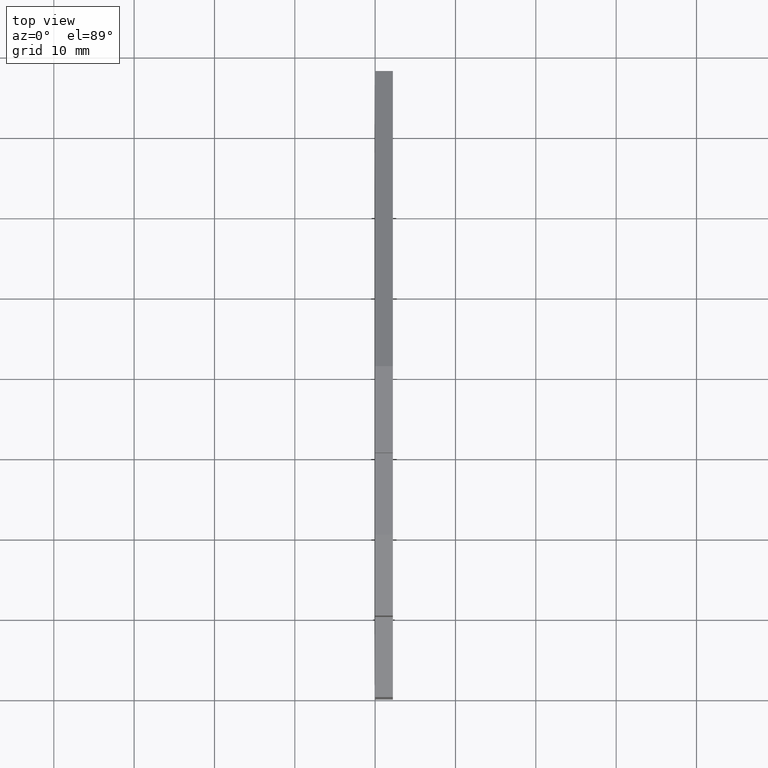
[diagram: clean part render]
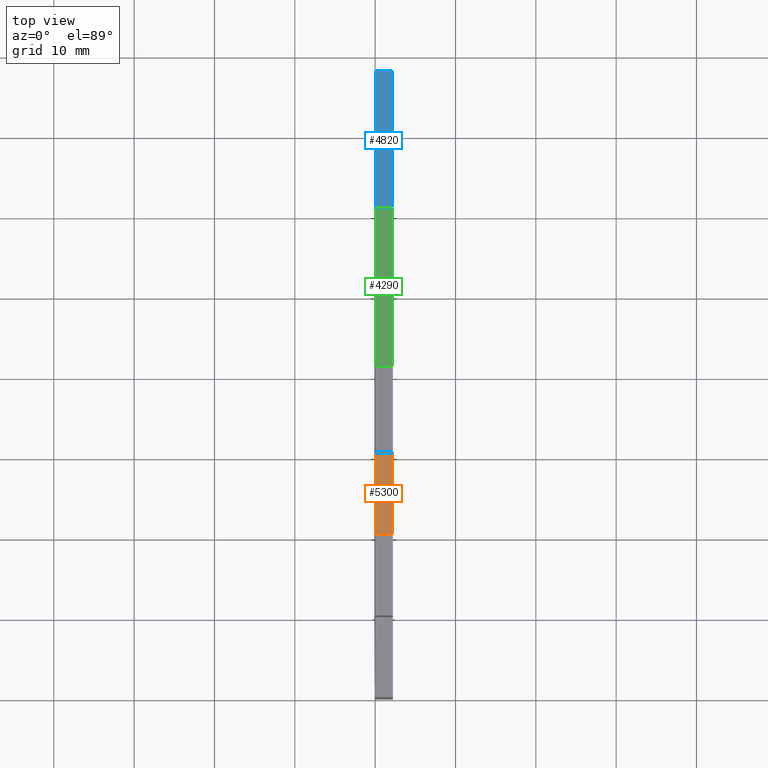
[diagram: same view with three faces highlighted in distinct colors, each labeled with its STEP entity id]
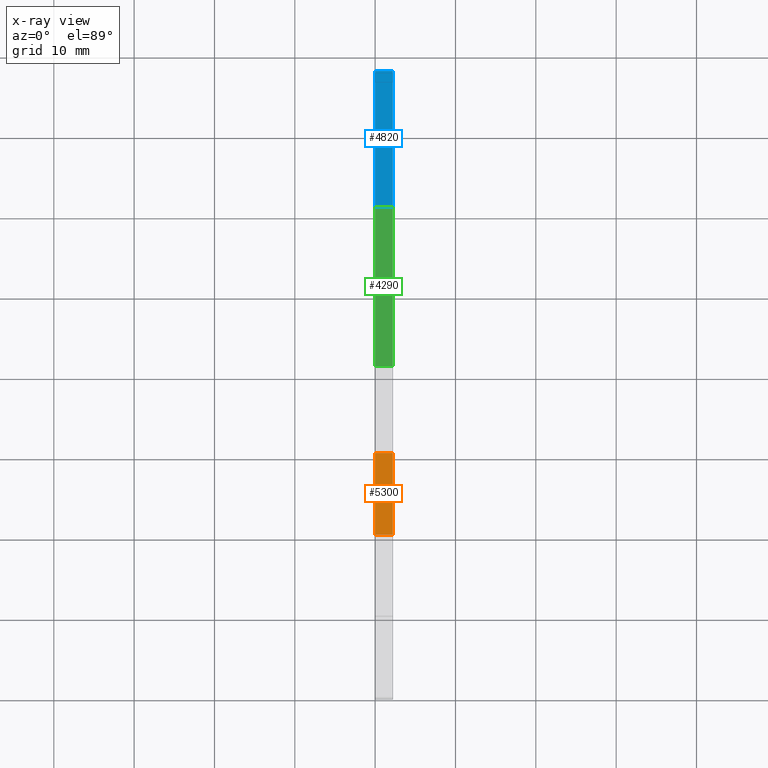
[diagram: x-ray of the same camera — body ghosted, the three highlighted faces saturated]
A machine part, top view with three faces highlighted in distinct colors.
The next image is the same camera in x-ray (body ghosted, the three faces saturated) — at least one of them is partly hidden behind the body in this view.
Their STEP definitions:

[orange] entity #5300 — the highlighted planar face has unit normal (-0, 0, 1).
#1170=CARTESIAN_POINT('',(-24.050000038563,31.9000000000017,
-6.3948846218409E-14));
#1180=VERTEX_POINT('',#1170);
#1210=CARTESIAN_POINT('',(-12.789958,31.9000000000017,
-6.3948846218409E-14));
#1220=DIRECTION('',(1.,0.,0.));
#1230=VECTOR('',#1220,1.);
#1240=LINE('',#1210,#1230);
#1250=CARTESIAN_POINT('',(-34.207945725206,31.9000000000017,
-6.3948846218409E-14));
#1260=VERTEX_POINT('',#1250);
#1270=EDGE_CURVE('',#1260,#1180,#1240,.T.);
#2220=CARTESIAN_POINT('',(-34.207945725206,31.9000000000016,
2.19999999999994));
#2230=VERTEX_POINT('',#2220);
#2260=CARTESIAN_POINT('',(-12.789958,31.9000000000017,2.19999999999994))
;
#2270=DIRECTION('',(-1.,0.,0.));
#2280=VECTOR('',#2270,1.);
#2290=LINE('',#2260,#2280);
#2300=CARTESIAN_POINT('',(-24.050000038563,31.9000000000017,
2.19999999999994));
#2310=VERTEX_POINT('',#2300);
#2320=EDGE_CURVE('',#2310,#2230,#2290,.T.);
#4970=CARTESIAN_POINT('',(-24.050000038563,31.9000000000017,
-6.3948846218409E-14));
#4980=DIRECTION('',(0.,0.,1.));
#4990=VECTOR('',#4980,1.);
#5000=LINE('',#4970,#4990);
#5010=EDGE_CURVE('',#1180,#2310,#5000,.T.);
#5140=CARTESIAN_POINT('',(-34.207945725206,31.9000000000017,
-6.3948846218409E-14));
#5150=DIRECTION('',(0.,1.,-0.));
#5160=DIRECTION('',(-1.,0.,0.));
#5170=AXIS2_PLACEMENT_3D('',#5140,#5150,#5160);
#5180=PLANE('',#5170);
#5190=ORIENTED_EDGE('',*,*,#5010,.F.);
#5200=ORIENTED_EDGE('',*,*,#2320,.F.);
#5210=CARTESIAN_POINT('',(-34.207945725206,31.9000000000016,
-6.3948846218409E-14));
#5220=DIRECTION('',(0.,0.,-1.));
#5230=VECTOR('',#5220,1.);
#5240=LINE('',#5210,#5230);
#5250=EDGE_CURVE('',#2230,#1260,#5240,.T.);
#5260=ORIENTED_EDGE('',*,*,#5250,.F.);
#5270=ORIENTED_EDGE('',*,*,#1270,.F.);
#5280=EDGE_LOOP('',(#5270,#5260,#5200,#5190));
#5290=FACE_OUTER_BOUND('',#5280,.T.);
#5300=ADVANCED_FACE('',(#5290),#5180,.T.);

[blue] entity #4820 — the highlighted planar face has unit normal (-0, 0.342, 0.9397).
#690=CARTESIAN_POINT('',(23.8999999614379,10.4510262039411,
-6.3948846218409E-14));
#700=VERTEX_POINT('',#690);
#730=CARTESIAN_POINT('',(-12.789958,23.8050787983884,
-6.3948846218409E-14));
#740=DIRECTION('',(0.939692620785863,-0.342020143325795,0.));
#750=VECTOR('',#740,1.);
#760=LINE('',#730,#750);
#770=CARTESIAN_POINT('',(4.86636729023012,17.3787019462203,
-6.3948846218409E-14));
#780=VERTEX_POINT('',#770);
#790=EDGE_CURVE('',#780,#700,#760,.T.);
#2700=CARTESIAN_POINT('',(4.86636729023012,17.3787019462203,
2.19999999999994));
#2710=VERTEX_POINT('',#2700);
#2740=CARTESIAN_POINT('',(-12.789958,23.8050787983884,2.19999999999994))
;
#2750=DIRECTION('',(-0.939692620785863,0.342020143325795,0.));
#2760=VECTOR('',#2750,1.);
#2770=LINE('',#2740,#2760);
#2780=CARTESIAN_POINT('',(23.8999999614379,10.4510262039411,
2.19999999999994));
#2790=VERTEX_POINT('',#2780);
#2800=EDGE_CURVE('',#2790,#2710,#2770,.T.);
#4610=CARTESIAN_POINT('',(4.86636729023012,17.3787019462203,
-6.3948846218409E-14));
#4620=DIRECTION('',(0.342020143325795,0.939692620785863,-0.));
#4630=DIRECTION('',(-0.939692620785863,0.342020143325795,0.));
#4640=AXIS2_PLACEMENT_3D('',#4610,#4620,#4630);
#4650=PLANE('',#4640);
#4660=CARTESIAN_POINT('',(23.8999999614379,10.4510262039411,
-6.3948846218409E-14));
#4670=DIRECTION('',(0.,0.,-1.));
#4680=VECTOR('',#4670,1.);
#4690=LINE('',#4660,#4680);
#4700=EDGE_CURVE('',#2790,#700,#4690,.T.);
#4710=ORIENTED_EDGE('',*,*,#4700,.T.);
#4720=ORIENTED_EDGE('',*,*,#2800,.F.);
#4730=CARTESIAN_POINT('',(4.86636729023012,17.3787019462203,
-6.3948846218409E-14));
#4740=DIRECTION('',(0.,0.,1.));
#4750=VECTOR('',#4740,1.);
#4760=LINE('',#4730,#4750);
#4770=EDGE_CURVE('',#780,#2710,#4760,.T.);
#4780=ORIENTED_EDGE('',*,*,#4770,.T.);
#4790=ORIENTED_EDGE('',*,*,#790,.F.);
#4800=EDGE_LOOP('',(#4790,#4780,#4720,#4710));
#4810=FACE_OUTER_BOUND('',#4800,.T.);
#4820=ADVANCED_FACE('',(#4810),#4650,.T.);

[green] entity #4290 — the highlighted planar face has unit normal (-0, 0.342, 0.9397).
#930=CARTESIAN_POINT('',(6.59999996143703,28.2631896507696,
-6.3948846218409E-14));
#940=VERTEX_POINT('',#930);
#970=CARTESIAN_POINT('',(-12.789958,35.3205571924083,
-6.3948846218409E-14));
#980=DIRECTION('',(0.939692620785867,-0.342020143325783,0.));
#990=VECTOR('',#980,1.);
#1000=LINE('',#970,#990);
#1010=CARTESIAN_POINT('',(-13.2829730619506,35.5000000000033,
-6.3948846218409E-14));
#1020=VERTEX_POINT('',#1010);
#1030=EDGE_CURVE('',#1020,#940,#1000,.T.);
#2460=CARTESIAN_POINT('',(-13.2829730619506,35.5000000000033,
2.19999999999994));
#2470=VERTEX_POINT('',#2460);
#2500=CARTESIAN_POINT('',(-12.789958,35.3205571924083,2.19999999999994))
;
#2510=DIRECTION('',(-0.939692620785867,0.342020143325783,0.));
#2520=VECTOR('',#2510,1.);
#2530=LINE('',#2500,#2520);
#2540=CARTESIAN_POINT('',(6.59999996143703,28.2631896507696,
2.19999999999994));
#2550=VERTEX_POINT('',#2540);
#2560=EDGE_CURVE('',#2550,#2470,#2530,.T.);
#3680=CARTESIAN_POINT('',(6.59999996143703,28.2631896507696,
-6.3948846218409E-14));
#3690=DIRECTION('',(0.,0.,-1.));
#3700=VECTOR('',#3690,1.);
#3710=LINE('',#3680,#3700);
#3720=EDGE_CURVE('',#2550,#940,#3710,.T.);
#4130=CARTESIAN_POINT('',(-13.2829730619506,35.5000000000033,
-6.3948846218409E-14));
#4140=DIRECTION('',(0.342020143325783,0.939692620785867,-0.));
#4150=DIRECTION('',(-0.939692620785867,0.342020143325783,0.));
#4160=AXIS2_PLACEMENT_3D('',#4130,#4140,#4150);
#4170=PLANE('',#4160);
#4180=ORIENTED_EDGE('',*,*,#3720,.T.);
#4190=ORIENTED_EDGE('',*,*,#2560,.F.);
#4200=CARTESIAN_POINT('',(-13.2829730619506,35.5000000000033,
-6.3948846218409E-14));
#4210=DIRECTION('',(0.,0.,-1.));
#4220=VECTOR('',#4210,1.);
#4230=LINE('',#4200,#4220);
#4240=EDGE_CURVE('',#2470,#1020,#4230,.T.);
#4250=ORIENTED_EDGE('',*,*,#4240,.F.);
#4260=ORIENTED_EDGE('',*,*,#1030,.F.);
#4270=EDGE_LOOP('',(#4260,#4250,#4190,#4180));
#4280=FACE_OUTER_BOUND('',#4270,.T.);
#4290=ADVANCED_FACE('',(#4280),#4170,.T.);